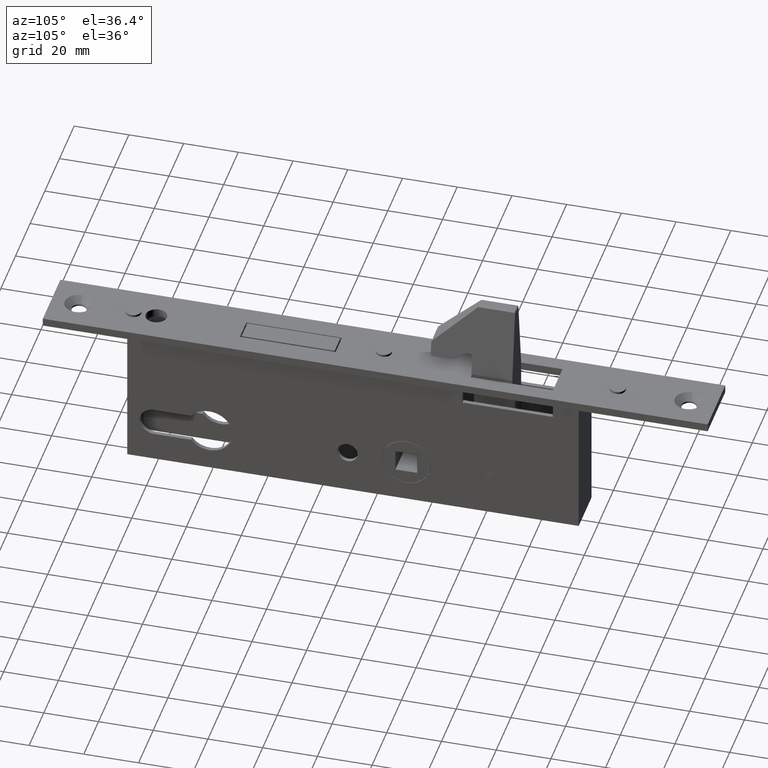
[diagram: clean part render]
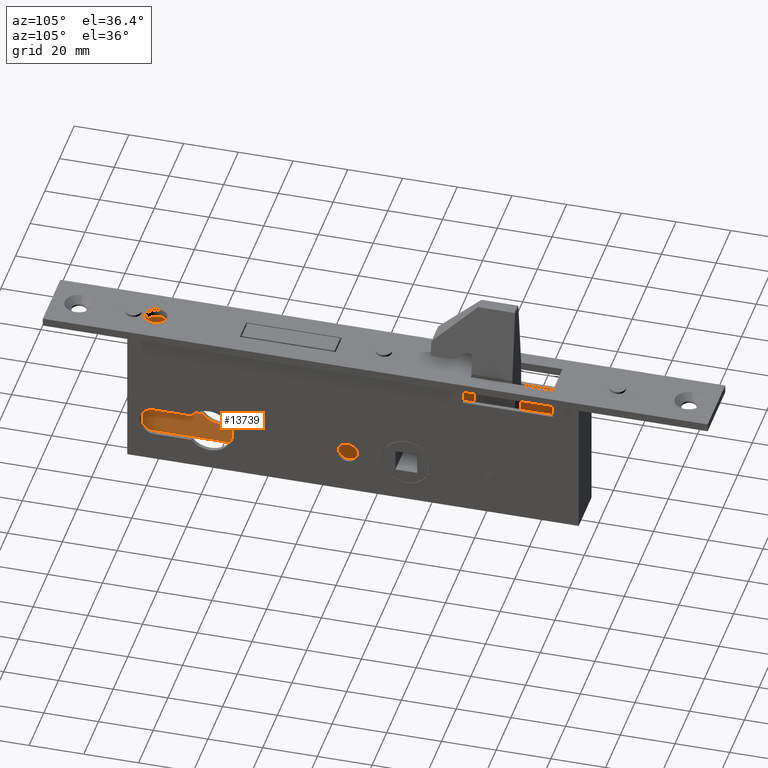
[diagram: same view with one face highlighted and labeled with its STEP entity id]
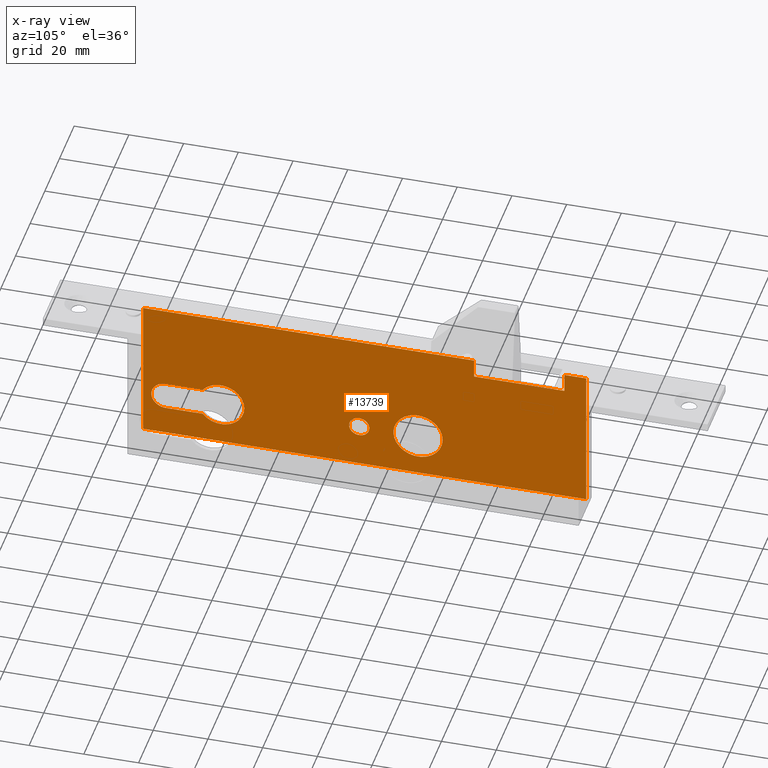
[diagram: x-ray of the same camera — body ghosted, the highlighted face saturated]
A machine part, auxiliary view. The second image highlights one B-rep face of the part: STEP entity #13739.
The next image is the same camera in x-ray: the body ghosted, the highlighted face saturated — about 0% of this face is hidden behind the body in this view.
In plain terms, the highlighted planar face has unit normal (1, -0, 0).
Its self-contained STEP definition (entity closure, byte-faithful):
#56 = DIRECTION ( 'NONE',  ( -1.231439504551437200E-016, -1.000000000000000000, -1.314184451497581000E-016 ) ) ;
#177 = DIRECTION ( 'NONE',  ( 9.637352644315557000E-017, 1.000000000000000000, 0.0000000000000000000 ) ) ;
#186 = VERTEX_POINT ( 'NONE', #3147 ) ;
#286 = AXIS2_PLACEMENT_3D ( 'NONE', #5772, #6670, #177 ) ;
#293 = CARTESIAN_POINT ( 'NONE',  ( -7.249999999999997300, 60.00000000000000000, -37.00000000000000700 ) ) ;
#431 = AXIS2_PLACEMENT_3D ( 'NONE', #293, #6841, #3627 ) ;
#509 = CARTESIAN_POINT ( 'NONE',  ( -7.249999999999988500, 141.0000000000000300, -37.00000000000000700 ) ) ;
#550 = VERTEX_POINT ( 'NONE', #7024 ) ;
#627 = ORIENTED_EDGE ( 'NONE', *, *, #10679, .F. ) ;
#720 = EDGE_CURVE ( 'NONE', #11714, #7041, #4913, .T. ) ;
#1028 = DIRECTION ( 'NONE',  ( 1.000000000000000000, -1.231439504551437200E-016, 0.0000000000000000000 ) ) ;
#1161 = VECTOR ( 'NONE', #3579, 1000.000000000000000 ) ;
#1272 = EDGE_CURVE ( 'NONE', #4118, #9785, #4370, .T. ) ;
#1553 = ORIENTED_EDGE ( 'NONE', *, *, #9397, .T. ) ;
#1608 = ORIENTED_EDGE ( 'NONE', *, *, #2636, .T. ) ;
#1843 = VERTEX_POINT ( 'NONE', #12920 ) ;
#1891 = CARTESIAN_POINT ( 'NONE',  ( -7.249999999999981300, 193.5000000000000000, 0.0000000000000000000 ) ) ;
#2009 = ORIENTED_EDGE ( 'NONE', *, *, #13515, .F. ) ;
#2066 = ORIENTED_EDGE ( 'NONE', *, *, #8573, .F. ) ;
#2213 = FACE_BOUND ( 'NONE', #13173, .T. ) ;
#2222 = ORIENTED_EDGE ( 'NONE', *, *, #5833, .T. ) ;
#2248 = CARTESIAN_POINT ( 'NONE',  ( -7.249999999999981300, 193.5000000000000000, -53.00000000000000000 ) ) ;
#2398 = CARTESIAN_POINT ( 'NONE',  ( -7.249999999999982200, 185.5000000000000000, 0.0000000000000000000 ) ) ;
#2586 = ORIENTED_EDGE ( 'NONE', *, *, #13606, .F. ) ;
#2627 = VERTEX_POINT ( 'NONE', #3387 ) ;
#2636 = EDGE_CURVE ( 'NONE', #550, #8241, #6063, .T. ) ;
#2699 = AXIS2_PLACEMENT_3D ( 'NONE', #9791, #1028, #7498 ) ;
#2953 = VECTOR ( 'NONE', #7227, 1000.000000000000000 ) ;
#3028 = ORIENTED_EDGE ( 'NONE', *, *, #4148, .F. ) ;
#3033 = VERTEX_POINT ( 'NONE', #3139 ) ;
#3139 = CARTESIAN_POINT ( 'NONE',  ( -7.249999999999992900, 106.8000000000000300, -37.00000000000000700 ) ) ;
#3147 = CARTESIAN_POINT ( 'NONE',  ( -7.249999999999991100, 114.2000000000000000, -37.00000000000000700 ) ) ;
#3167 = CIRCLE ( 'NONE', #431, 8.499999999999992900 ) ;
#3174 = VECTOR ( 'NONE', #56, 1000.000000000000000 ) ;
#3297 = CARTESIAN_POINT ( 'NONE',  ( -7.249999999999981300, 193.5000000000000000, -53.00000000000000000 ) ) ;
#3310 = DIRECTION ( 'NONE',  ( 1.000000000000000000, -1.231439504551437200E-016, 0.0000000000000000000 ) ) ;
#3387 = CARTESIAN_POINT ( 'NONE',  ( -7.249999999999981300, 193.5000000000000000, -53.00000000000000000 ) ) ;
#3453 = CARTESIAN_POINT ( 'NONE',  ( -7.249999999999997300, 60.00000000000000000, -37.00000000000000700 ) ) ;
#3485 = CARTESIAN_POINT ( 'NONE',  ( -7.249999999999985800, 152.5000000000000000, 0.0000000000000000000 ) ) ;
#3579 = DIRECTION ( 'NONE',  ( -1.231439504551437200E-016, -1.000000000000000000, 0.0000000000000000000 ) ) ;
#3623 = ORIENTED_EDGE ( 'NONE', *, *, #1272, .F. ) ;
#3627 = DIRECTION ( 'NONE',  ( 1.020425574104005000E-016, 1.000000000000000000, 0.0000000000000000000 ) ) ;
#3676 = CARTESIAN_POINT ( 'NONE',  ( -7.249999999999992000, 110.5000000000000100, -37.00000000000000700 ) ) ;
#3682 = EDGE_CURVE ( 'NONE', #1843, #12549, #6887, .T. ) ;
#3699 = VERTEX_POINT ( 'NONE', #3805 ) ;
#3782 = VECTOR ( 'NONE', #10358, 1000.000000000000000 ) ;
#3805 = CARTESIAN_POINT ( 'NONE',  ( -7.249999999999997300, 53.31512902143953200, -31.75000000000000000 ) ) ;
#3895 = EDGE_LOOP ( 'NONE', ( #8036, #5214, #8298, #627, #3028 ) ) ;
#3936 = FACE_OUTER_BOUND ( 'NONE', #11798, .T. ) ;
#4118 = VERTEX_POINT ( 'NONE', #509 ) ;
#4137 = ORIENTED_EDGE ( 'NONE', *, *, #8934, .F. ) ;
#4148 = EDGE_CURVE ( 'NONE', #12549, #6438, #5481, .T. ) ;
#4370 = CIRCLE ( 'NONE', #286, 9.000000000000035500 ) ;
#4371 = CARTESIAN_POINT ( 'NONE',  ( -7.249999999999981300, 193.5000000000000000, -53.00000000000000000 ) ) ;
#4412 = ORIENTED_EDGE ( 'NONE', *, *, #5317, .T. ) ;
#4673 = CARTESIAN_POINT ( 'NONE',  ( -7.249999999999981300, 193.5000000000000000, -42.25000000000000700 ) ) ;
#4833 = CARTESIAN_POINT ( 'NONE',  ( -7.250000000000000000, 39.75000000000000000, -37.00000000000000700 ) ) ;
#4913 = LINE ( 'NONE', #13293, #7474 ) ;
#5194 = CARTESIAN_POINT ( 'NONE',  ( -7.250000000000000900, 31.50000000000000000, 0.0000000000000000000 ) ) ;
#5214 = ORIENTED_EDGE ( 'NONE', *, *, #6566, .F. ) ;
#5223 = DIRECTION ( 'NONE',  ( 0.0000000000000000000, 0.0000000000000000000, -1.000000000000000000 ) ) ;
#5317 = EDGE_CURVE ( 'NONE', #2627, #10751, #6012, .T. ) ;
#5481 = LINE ( 'NONE', #4673, #10140 ) ;
#5523 = EDGE_CURVE ( 'NONE', #186, #3033, #11281, .T. ) ;
#5559 = DIRECTION ( 'NONE',  ( 1.020425574104005000E-016, 1.000000000000000000, 0.0000000000000000000 ) ) ;
#5647 = DIRECTION ( 'NONE',  ( 1.000000000000000000, -1.231439504551437200E-016, 0.0000000000000000000 ) ) ;
#5740 = DIRECTION ( 'NONE',  ( 1.000000000000000000, -1.231439504551437200E-016, 0.0000000000000000000 ) ) ;
#5772 = CARTESIAN_POINT ( 'NONE',  ( -7.249999999999989300, 132.0000000000000000, -37.00000000000000700 ) ) ;
#5821 = CIRCLE ( 'NONE', #5879, 8.499999999999992900 ) ;
#5833 = EDGE_CURVE ( 'NONE', #11714, #2627, #13728, .T. ) ;
#5879 = AXIS2_PLACEMENT_3D ( 'NONE', #3453, #3310, #5559 ) ;
#5909 = CARTESIAN_POINT ( 'NONE',  ( -7.249999999999981300, 193.5000000000000000, 0.0000000000000000000 ) ) ;
#5935 = DIRECTION ( 'NONE',  ( 1.652117596168386300E-016, 1.000000000000000000, 0.0000000000000000000 ) ) ;
#6012 = LINE ( 'NONE', #4371, #7875 ) ;
#6063 = LINE ( 'NONE', #7614, #3174 ) ;
#6163 = VECTOR ( 'NONE', #9980, 1000.000000000000000 ) ;
#6164 = VERTEX_POINT ( 'NONE', #3485 ) ;
#6438 = VERTEX_POINT ( 'NONE', #6555 ) ;
#6441 = LINE ( 'NONE', #7025, #1161 ) ;
#6474 = FACE_BOUND ( 'NONE', #8636, .T. ) ;
#6531 = ORIENTED_EDGE ( 'NONE', *, *, #9891, .T. ) ;
#6555 = CARTESIAN_POINT ( 'NONE',  ( -7.249999999999999100, 53.31512902143953200, -42.25000000000000700 ) ) ;
#6566 = EDGE_CURVE ( 'NONE', #3699, #1843, #6441, .T. ) ;
#6670 = DIRECTION ( 'NONE',  ( 1.000000000000000000, -1.231439504551437200E-016, 0.0000000000000000000 ) ) ;
#6699 = CIRCLE ( 'NONE', #12485, 9.000000000000035500 ) ;
#6841 = DIRECTION ( 'NONE',  ( 1.000000000000000000, -1.231439504551437200E-016, 0.0000000000000000000 ) ) ;
#6887 = CIRCLE ( 'NONE', #7136, 5.250000000000004400 ) ;
#6998 = DIRECTION ( 'NONE',  ( 1.231439504551437200E-016, 1.000000000000000000, -0.0000000000000000000 ) ) ;
#7010 = DIRECTION ( 'NONE',  ( 1.231439504551437200E-016, 1.000000000000000000, 0.0000000000000000000 ) ) ;
#7024 = CARTESIAN_POINT ( 'NONE',  ( -7.249999999999985800, 185.5000000000000000, -7.000000000000000000 ) ) ;
#7025 = CARTESIAN_POINT ( 'NONE',  ( -7.249999999999981300, 193.5000000000000000, -31.75000000000000000 ) ) ;
#7041 = VERTEX_POINT ( 'NONE', #5194 ) ;
#7136 = AXIS2_PLACEMENT_3D ( 'NONE', #4833, #8136, #5935 ) ;
#7178 = VECTOR ( 'NONE', #5223, 1000.000000000000000 ) ;
#7227 = DIRECTION ( 'NONE',  ( -0.0000000000000000000, 0.0000000000000000000, 1.000000000000000000 ) ) ;
#7344 = CARTESIAN_POINT ( 'NONE',  ( -7.250000000000000900, 31.50000000000000000, -53.00000000000000000 ) ) ;
#7382 = CARTESIAN_POINT ( 'NONE',  ( -7.249999999999982200, 185.5000000000000000, -53.00000000000000000 ) ) ;
#7474 = VECTOR ( 'NONE', #10819, 1000.000000000000000 ) ;
#7498 = DIRECTION ( 'NONE',  ( 2.344220913482175100E-016, 1.000000000000000000, 0.0000000000000000000 ) ) ;
#7614 = CARTESIAN_POINT ( 'NONE',  ( -7.249999999999981300, 193.5000000000000000, -6.999999999999999100 ) ) ;
#7875 = VECTOR ( 'NONE', #8760, 1000.000000000000000 ) ;
#8036 = ORIENTED_EDGE ( 'NONE', *, *, #3682, .F. ) ;
#8136 = DIRECTION ( 'NONE',  ( 1.000000000000000000, -1.231439504551437200E-016, 0.0000000000000000000 ) ) ;
#8241 = VERTEX_POINT ( 'NONE', #8384 ) ;
#8298 = ORIENTED_EDGE ( 'NONE', *, *, #9625, .F. ) ;
#8384 = CARTESIAN_POINT ( 'NONE',  ( -7.249999999999985800, 152.5000000000000000, -7.000000000000004400 ) ) ;
#8573 = EDGE_CURVE ( 'NONE', #3033, #186, #13929, .T. ) ;
#8636 = EDGE_LOOP ( 'NONE', ( #3623, #4137 ) ) ;
#8760 = DIRECTION ( 'NONE',  ( -0.0000000000000000000, -0.0000000000000000000, 1.000000000000000000 ) ) ;
#8934 = EDGE_CURVE ( 'NONE', #9785, #4118, #6699, .T. ) ;
#9394 = VERTEX_POINT ( 'NONE', #10610 ) ;
#9397 = EDGE_CURVE ( 'NONE', #8241, #6164, #9430, .T. ) ;
#9430 = LINE ( 'NONE', #11705, #2953 ) ;
#9544 = DIRECTION ( 'NONE',  ( 9.637352644315557000E-017, 1.000000000000000000, 0.0000000000000000000 ) ) ;
#9625 = EDGE_CURVE ( 'NONE', #9394, #3699, #5821, .T. ) ;
#9736 = LINE ( 'NONE', #5909, #3782 ) ;
#9785 = VERTEX_POINT ( 'NONE', #11573 ) ;
#9791 = CARTESIAN_POINT ( 'NONE',  ( -7.249999999999992000, 110.5000000000000100, -37.00000000000000700 ) ) ;
#9891 = EDGE_CURVE ( 'NONE', #11561, #550, #13003, .T. ) ;
#9980 = DIRECTION ( 'NONE',  ( 1.231439504551437200E-016, 1.000000000000000000, -0.0000000000000000000 ) ) ;
#10075 = FACE_BOUND ( 'NONE', #3895, .T. ) ;
#10140 = VECTOR ( 'NONE', #7010, 1000.000000000000000 ) ;
#10240 = DIRECTION ( 'NONE',  ( 2.344220913482175100E-016, 1.000000000000000000, 0.0000000000000000000 ) ) ;
#10358 = DIRECTION ( 'NONE',  ( 1.231439504551437200E-016, 1.000000000000000000, -0.0000000000000000000 ) ) ;
#10445 = AXIS2_PLACEMENT_3D ( 'NONE', #3676, #5740, #10240 ) ;
#10610 = CARTESIAN_POINT ( 'NONE',  ( -7.249999999999997300, 68.49999999999998600, -37.00000000000000700 ) ) ;
#10679 = EDGE_CURVE ( 'NONE', #6438, #9394, #3167, .T. ) ;
#10743 = AXIS2_PLACEMENT_3D ( 'NONE', #3297, #5647, #10893 ) ;
#10751 = VERTEX_POINT ( 'NONE', #1891 ) ;
#10819 = DIRECTION ( 'NONE',  ( -0.0000000000000000000, -0.0000000000000000000, 1.000000000000000000 ) ) ;
#10893 = DIRECTION ( 'NONE',  ( 1.231439504551437200E-016, 1.000000000000000000, 0.0000000000000000000 ) ) ;
#11281 = CIRCLE ( 'NONE', #10445, 3.699999999999994800 ) ;
#11561 = VERTEX_POINT ( 'NONE', #2398 ) ;
#11573 = CARTESIAN_POINT ( 'NONE',  ( -7.249999999999990200, 122.9999999999999900, -37.00000000000000700 ) ) ;
#11675 = CARTESIAN_POINT ( 'NONE',  ( -7.249999999999989300, 132.0000000000000000, -37.00000000000000700 ) ) ;
#11705 = CARTESIAN_POINT ( 'NONE',  ( -7.249999999999986700, 152.5000000000000000, -53.00000000000000000 ) ) ;
#11714 = VERTEX_POINT ( 'NONE', #7344 ) ;
#11798 = EDGE_LOOP ( 'NONE', ( #2586, #6531, #1608, #1553, #2009, #13203, #2222, #4412 ) ) ;
#11896 = CARTESIAN_POINT ( 'NONE',  ( -7.250000000000000000, 39.75000000000000700, -42.25000000000000700 ) ) ;
#12456 = CARTESIAN_POINT ( 'NONE',  ( -7.249999999999981300, 193.5000000000000000, 0.0000000000000000000 ) ) ;
#12483 = LINE ( 'NONE', #12456, #12999 ) ;
#12485 = AXIS2_PLACEMENT_3D ( 'NONE', #11675, #12806, #9544 ) ;
#12549 = VERTEX_POINT ( 'NONE', #11896 ) ;
#12806 = DIRECTION ( 'NONE',  ( 1.000000000000000000, -1.231439504551437200E-016, 0.0000000000000000000 ) ) ;
#12920 = CARTESIAN_POINT ( 'NONE',  ( -7.249999999999999100, 39.75000000000000000, -31.75000000000000000 ) ) ;
#12999 = VECTOR ( 'NONE', #6998, 1000.000000000000000 ) ;
#13003 = LINE ( 'NONE', #7382, #7178 ) ;
#13173 = EDGE_LOOP ( 'NONE', ( #13972, #2066 ) ) ;
#13203 = ORIENTED_EDGE ( 'NONE', *, *, #720, .F. ) ;
#13209 = PLANE ( 'NONE',  #10743 ) ;
#13293 = CARTESIAN_POINT ( 'NONE',  ( -7.250000000000000900, 31.50000000000000000, -53.00000000000000000 ) ) ;
#13515 = EDGE_CURVE ( 'NONE', #7041, #6164, #12483, .T. ) ;
#13606 = EDGE_CURVE ( 'NONE', #11561, #10751, #9736, .T. ) ;
#13728 = LINE ( 'NONE', #2248, #6163 ) ;
#13739 = ADVANCED_FACE ( 'NONE', ( #2213, #6474, #10075, #3936 ), #13209, .T. ) ;
#13929 = CIRCLE ( 'NONE', #2699, 3.699999999999994800 ) ;
#13972 = ORIENTED_EDGE ( 'NONE', *, *, #5523, .F. ) ;